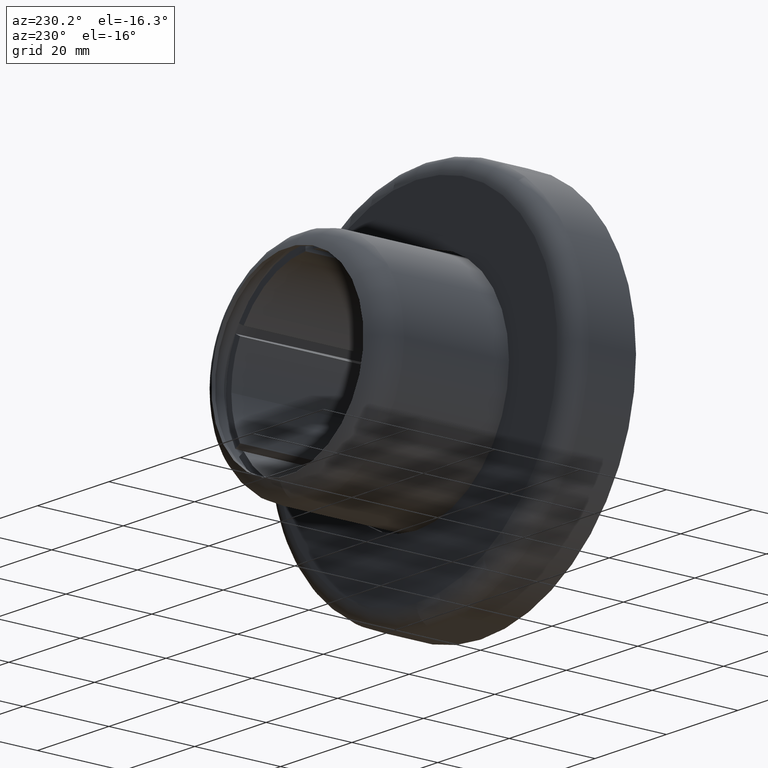
[diagram: clean part render]
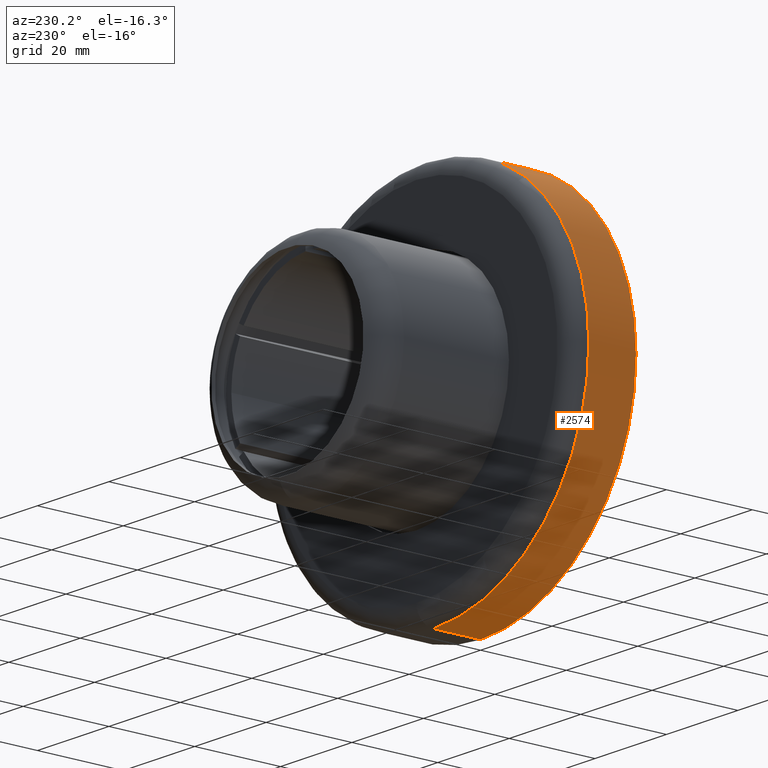
[diagram: same view with one face highlighted and labeled with its STEP entity id]
A machine part, auxiliary view. The second image highlights one B-rep face of the part: STEP entity #2574.
In plain terms, the highlighted cylindrical surface (partial cylindrical patch) has radius 43.5 mm, axis along (-0, -1, -0).
Its self-contained STEP definition (entity closure, byte-faithful):
#10 = DIRECTION ( 'NONE',  ( 0.0000000000000000000, 0.0000000000000000000, 1.000000000000000000 ) ) ;
#40 = EDGE_CURVE ( 'NONE', #68, #2445, #241, .T. ) ;
#45 = AXIS2_PLACEMENT_3D ( 'NONE', #57, #2453, #629 ) ;
#57 = CARTESIAN_POINT ( 'NONE',  ( 0.0000000000000000000, 15.00000000000000000, 0.0000000000000000000 ) ) ;
#68 = VERTEX_POINT ( 'NONE', #2935 ) ;
#241 = CIRCLE ( 'NONE', #682, 43.50000000000000000 ) ;
#307 = CARTESIAN_POINT ( 'NONE',  ( 5.327213576290986000E-015, 0.0000000000000000000, 43.50000000000000000 ) ) ;
#324 = CIRCLE ( 'NONE', #1267, 43.50000000000000000 ) ;
#390 = LINE ( 'NONE', #2118, #851 ) ;
#518 = DIRECTION ( 'NONE',  ( -0.0000000000000000000, -1.000000000000000000, -0.0000000000000000000 ) ) ;
#629 = DIRECTION ( 'NONE',  ( 0.0000000000000000000, 0.0000000000000000000, -1.000000000000000000 ) ) ;
#682 = AXIS2_PLACEMENT_3D ( 'NONE', #1625, #518, #10 ) ;
#776 = DIRECTION ( 'NONE',  ( -0.0000000000000000000, -1.000000000000000000, -0.0000000000000000000 ) ) ;
#851 = VECTOR ( 'NONE', #776, 1000.000000000000000 ) ;
#994 = EDGE_CURVE ( 'NONE', #2689, #3079, #324, .T. ) ;
#1012 = FACE_OUTER_BOUND ( 'NONE', #2963, .T. ) ;
#1113 = ORIENTED_EDGE ( 'NONE', *, *, #1795, .T. ) ;
#1135 = DIRECTION ( 'NONE',  ( 0.0000000000000000000, 0.0000000000000000000, 1.000000000000000000 ) ) ;
#1267 = AXIS2_PLACEMENT_3D ( 'NONE', #2152, #3288, #1135 ) ;
#1344 = CARTESIAN_POINT ( 'NONE',  ( 0.0000000000000000000, 15.00000000000000000, -43.50000000000000000 ) ) ;
#1442 = LINE ( 'NONE', #1344, #2805 ) ;
#1542 = ORIENTED_EDGE ( 'NONE', *, *, #2912, .F. ) ;
#1625 = CARTESIAN_POINT ( 'NONE',  ( 0.0000000000000000000, 11.00000000000000000, 0.0000000000000000000 ) ) ;
#1631 = DIRECTION ( 'NONE',  ( -0.0000000000000000000, -1.000000000000000000, -0.0000000000000000000 ) ) ;
#1795 = EDGE_CURVE ( 'NONE', #2445, #2689, #1442, .T. ) ;
#2044 = ORIENTED_EDGE ( 'NONE', *, *, #994, .T. ) ;
#2118 = CARTESIAN_POINT ( 'NONE',  ( 5.327213576290986000E-015, 15.00000000000000000, 43.50000000000000000 ) ) ;
#2152 = CARTESIAN_POINT ( 'NONE',  ( 0.0000000000000000000, 0.0000000000000000000, 0.0000000000000000000 ) ) ;
#2420 = CARTESIAN_POINT ( 'NONE',  ( 0.0000000000000000000, 11.00000000000000000, -43.50000000000000000 ) ) ;
#2445 = VERTEX_POINT ( 'NONE', #2420 ) ;
#2453 = DIRECTION ( 'NONE',  ( -0.0000000000000000000, -1.000000000000000000, -0.0000000000000000000 ) ) ;
#2574 = ADVANCED_FACE ( 'NONE', ( #1012 ), #2850, .T. ) ;
#2689 = VERTEX_POINT ( 'NONE', #3056 ) ;
#2805 = VECTOR ( 'NONE', #1631, 1000.000000000000000 ) ;
#2850 = CYLINDRICAL_SURFACE ( 'NONE', #45, 43.50000000000000000 ) ;
#2912 = EDGE_CURVE ( 'NONE', #68, #3079, #390, .T. ) ;
#2935 = CARTESIAN_POINT ( 'NONE',  ( 5.327213576290986000E-015, 11.00000000000000000, 43.50000000000000000 ) ) ;
#2963 = EDGE_LOOP ( 'NONE', ( #1542, #3208, #1113, #2044 ) ) ;
#3056 = CARTESIAN_POINT ( 'NONE',  ( 0.0000000000000000000, 0.0000000000000000000, -43.50000000000000000 ) ) ;
#3079 = VERTEX_POINT ( 'NONE', #307 ) ;
#3208 = ORIENTED_EDGE ( 'NONE', *, *, #40, .T. ) ;
#3288 = DIRECTION ( 'NONE',  ( 0.0000000000000000000, 1.000000000000000000, 0.0000000000000000000 ) ) ;